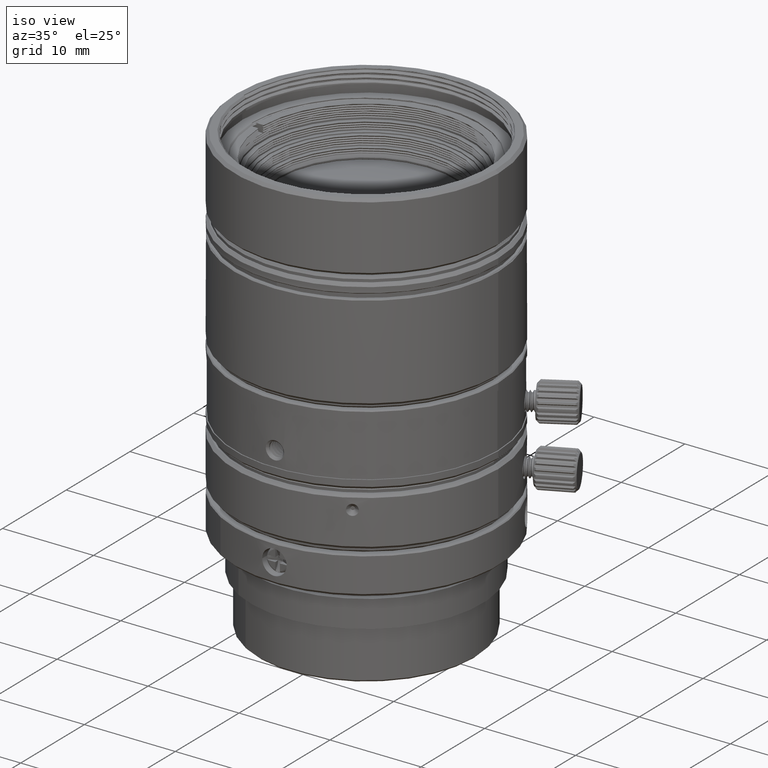
[diagram: clean part render]
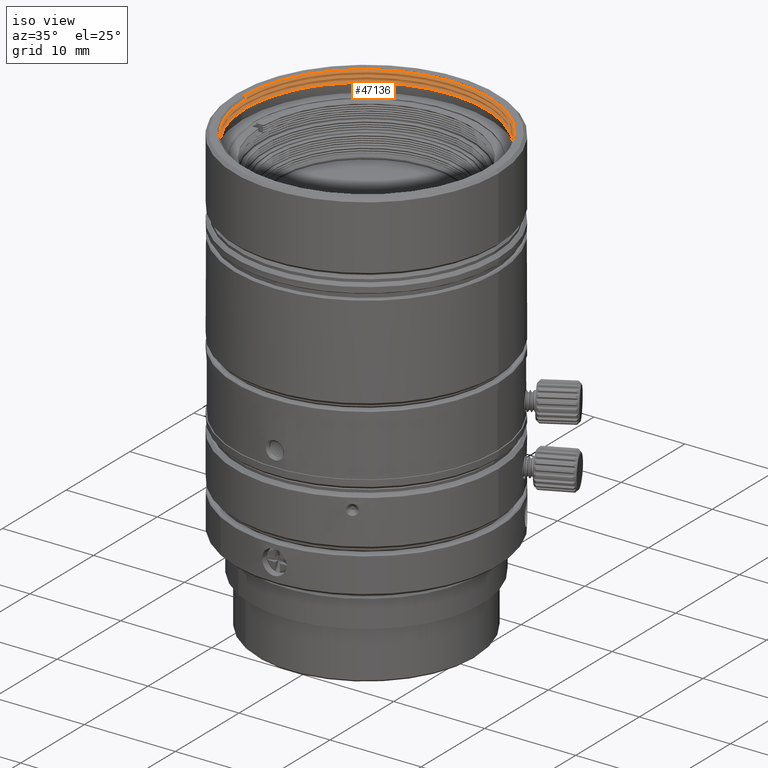
[diagram: same view with one face highlighted and labeled with its STEP entity id]
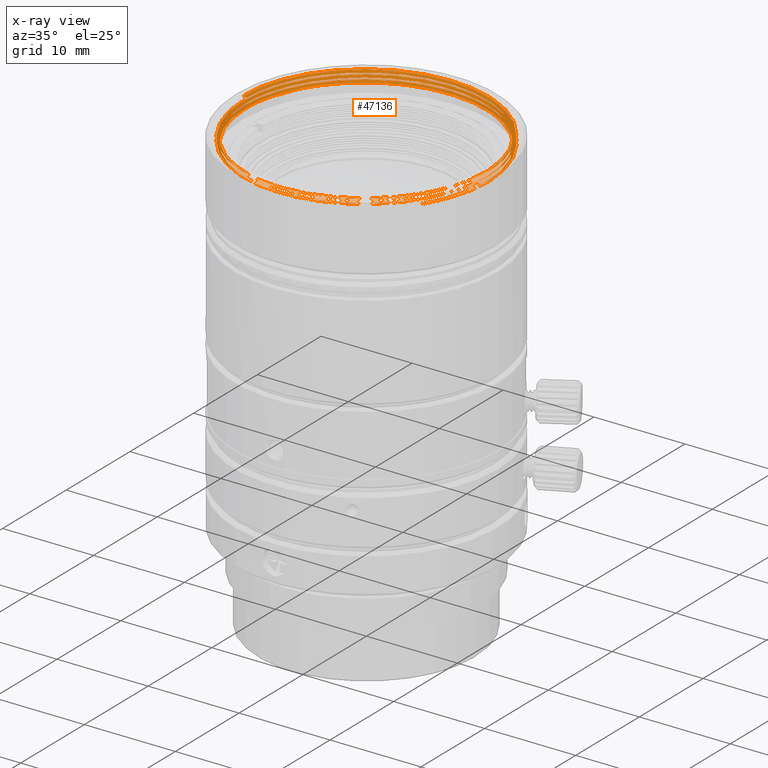
[diagram: x-ray of the same camera — body ghosted, the highlighted face saturated]
A machine part, iso view. The second image highlights one B-rep face of the part: STEP entity #47136.
The next image is the same camera in x-ray: the body ghosted, the highlighted face saturated — about 0% of this face is hidden behind the body in this view.
In plain terms, the highlighted face is a freeform B-spline surface patch.
Its self-contained STEP definition (entity closure, byte-faithful):
#167 = EDGE_CURVE ( 'NONE', #38062, #33712, #33276, .T. ) ;
#612 = CARTESIAN_POINT ( 'NONE',  ( 1.953992523340279929E-14, -13.30522692080259972, 42.00260450940569967 ) ) ;
#648 = CARTESIAN_POINT ( 'NONE',  ( -12.55444375105458299, 4.262492794065851243, 41.85727819297180474 ) ) ;
#746 = ORIENTED_EDGE ( 'NONE', *, *, #20448, .F. ) ;
#788 = VERTEX_POINT ( 'NONE', #12037 ) ;
#846 = CARTESIAN_POINT ( 'NONE',  ( 7.548545768439015369, 11.29719709678998463, 42.86738396117061711 ) ) ;
#914 = CARTESIAN_POINT ( 'NONE',  ( -2.665100436707940279, 13.39836467594370006, 42.97223714432959696 ) ) ;
#955 = CARTESIAN_POINT ( 'NONE',  ( -13.32595257650141285, -2.650696774580921122, 42.05488396117061711 ) ) ;
#1211 = CARTESIAN_POINT ( 'NONE',  ( 2.595720597328659895, -13.04956866947489935, 42.01822950940569257 ) ) ;
#1223 = CARTESIAN_POINT ( 'NONE',  ( 7.548545768439015369, -11.29719709678998463, 42.71113396117061711 ) ) ;
#1287 = EDGE_CURVE ( 'NONE', #22718, #45451, #56361, .T. ) ;
#1513 = CARTESIAN_POINT ( 'NONE',  ( 9.607477904595702611, 9.607477904595741691, 42.35175896117061001 ) ) ;
#1521 = CARTESIAN_POINT ( 'NONE',  ( 11.06289013418189882, -7.391986861308469159, 42.08072950940569257 ) ) ;
#1814 = CARTESIAN_POINT ( 'NONE',  ( 13.50000035464774051, 0.0001006786175923418241, 42.28924370480946493 ) ) ;
#1821 = CARTESIAN_POINT ( 'NONE',  ( -5.227783378235789868, -12.62098553288550029, 42.67536214432960406 ) ) ;
#1840 = CARTESIAN_POINT ( 'NONE',  ( -13.50000023668267524, -2.561856938022021668E-08, 42.53926286938398960 ) ) ;
#2025 = CARTESIAN_POINT ( 'NONE',  ( 8.130457716616016128, 10.57959832539991929, 42.70621047835582829 ) ) ;
#2045 = CARTESIAN_POINT ( 'NONE',  ( 13.32595257650141285, 2.650696774580981518, 42.80488396117061711 ) ) ;
#2117 = CARTESIAN_POINT ( 'NONE',  ( 5.227783378235820066, -12.62098553288550029, 42.23786214432960406 ) ) ;
#2436 = CARTESIAN_POINT ( 'NONE',  ( 13.66085630079839852, 2.597921877622869460E-14, 42.33161214432960406 ) ) ;
#2478 = CARTESIAN_POINT ( 'NONE',  ( 13.50000452970534148, -0.8835320631336180952, 42.28405082547631366 ) ) ;
#2748 = CARTESIAN_POINT ( 'NONE',  ( 2.665100436707960263, 13.39836467594370006, 42.94098714432960406 ) ) ;
#3052 = CARTESIAN_POINT ( 'NONE',  ( -13.39836467594370006, 2.665100436707950493, 42.06598714432960406 ) ) ;
#3277 = EDGE_CURVE ( 'NONE', #20761, #5990, #52492, .T. ) ;
#3334 = CARTESIAN_POINT ( 'NONE',  ( 12.17532900467680079, -5.176336752535680041, 41.60138904252160330 ) ) ;
#3355 = CARTESIAN_POINT ( 'NONE',  ( 5.227783378235809408, 12.62098553288550029, 41.92536214432960406 ) ) ;
#3403 = CARTESIAN_POINT ( 'NONE',  ( 5.199529574207982563, -12.55277481601286205, 42.19550896117062422 ) ) ;
#3485 = B_SPLINE_CURVE_WITH_KNOTS ( 'NONE', 3,
 ( #1814, #35031, #42675, #52694, #39744, #1513, #33243, #23540, #6511, #24158, #20919, #38591, #54133, #18848, #28856, #11196, #47343, #52989, #25614 ),
 .UNSPECIFIED., .F., .F.,
 ( 4, 1, 1, 1, 1, 1, 1, 1, 1, 1, 1, 1, 1, 1, 1, 1, 4 ),
 ( 0.4215121370630712239, 0.4335635197414881570, 0.4456153597473920258, 0.4576671997532959502, 0.4697190397592008182, 0.4817708797651047425, 0.4938227197710096661, 0.5058745597769135349, 0.5179263997828184030, 0.5299782397887222718, 0.5420300797946272509, 0.5540819198005311197, 0.5661337598064359877, 0.5781855998123399676, 0.5902374398182438364, 0.6022892798241485934, 0.6143411200512803871 ),
 .UNSPECIFIED. ) ;
#3495 = CARTESIAN_POINT ( 'NONE',  ( 12.29242682754770044, 5.091689906449150094, 42.65885450940569967 ) ) ;
#3679 = VERTEX_POINT ( 'NONE', #60995 ) ;
#3685 = B_SPLINE_CURVE_WITH_KNOTS ( 'NONE', 3,
 ( #58305, #5680, #56550, #44196, #42448, #5979, #27706, #42135, #47122, #28020, #19781, #8917, #4212, #24780, #20086, #13290, #48905, #33036, #46819, #61565, #39209, #53615, #61234, #13617, #32724, #23314, #18632, #37759, #52159, #45433 ),
 .UNSPECIFIED., .F., .F.,
 ( 4, 2, 2, 2, 2, 2, 2, 2, 2, 2, 2, 2, 2, 2, 4 ),
 ( 0.2199196317820964475, 0.2516031971690563251, 0.2832867625560162028, 0.2991285452494961694, 0.3149703279429760805, 0.3308121106364560471, 0.3466538933299359582, 0.3624956760234158692, 0.3783374587168958358, 0.3941792414103756914, 0.4100210241038556025, 0.4258628067973355691, 0.4417045894908154802, 0.4575463721842954468, 0.4733881548777753578 ),
 .UNSPECIFIED. ) ;
#3710 = CARTESIAN_POINT ( 'NONE',  ( 9.187601962288121982, 9.651706334954219813, 42.19794391325127236 ) ) ;
#3803 = CARTESIAN_POINT ( 'NONE',  ( -13.22000750369340061, 2.131628207280299927E-14, 42.87760450940569967 ) ) ;
#3871 = CARTESIAN_POINT ( 'NONE',  ( 13.23000766788004157, -2.873930721286521893E-07, 42.63333041596807504 ) ) ;
#3978 = CARTESIAN_POINT ( 'NONE',  ( 7.589563927830690560, 11.35858511050949993, 41.90973714432959696 ) ) ;
#4024 = CARTESIAN_POINT ( 'NONE',  ( 12.86895362206108118, -3.544853267954210629, 41.61202580047024213 ) ) ;
#4089 = CARTESIAN_POINT ( 'NONE',  ( -13.23000815934756069, -0.0001698527228863128070, 41.88337825461447039 ) ) ;
#4212 = CARTESIAN_POINT ( 'NONE',  ( -6.382258503269063965, -11.62108665452279865, 41.96849000029774146 ) ) ;
#4263 = CARTESIAN_POINT ( 'NONE',  ( 11.29719709678998463, 7.548545768439026027, 41.83613396117061001 ) ) ;
#4319 = ORIENTED_EDGE ( 'NONE', *, *, #58863, .F. ) ;
#4408 = CARTESIAN_POINT ( 'NONE',  ( -7.391986861308489587, 11.06289013418189882, 42.79947950940569967 ) ) ;
#4575 = CARTESIAN_POINT ( 'NONE',  ( 7.548545768439005599, 11.29719709678998463, 41.86738396117061001 ) ) ;
#5124 = ORIENTED_EDGE ( 'NONE', *, *, #17400, .T. ) ;
#5276 = CARTESIAN_POINT ( 'NONE',  ( -2.595720597328659895, 13.04956866947489935, 42.26822950940569257 ) ) ;
#5600 = CARTESIAN_POINT ( 'NONE',  ( 12.29242682754770044, 5.091689906449169634, 41.65885450940569967 ) ) ;
#5680 = CARTESIAN_POINT ( 'NONE',  ( -13.22999763591898059, -0.7686544596956934594, 41.88801049517930863 ) ) ;
#5758 = VERTEX_POINT ( 'NONE', #46520 ) ;
#5834 = CARTESIAN_POINT ( 'NONE',  ( 12.55277481601286205, 5.199529574207972793, 42.82050896117062422 ) ) ;
#5904 = CARTESIAN_POINT ( 'NONE',  ( 7.391986861308500245, 11.06289013418189882, 41.70572950940569257 ) ) ;
#5917 = CARTESIAN_POINT ( 'NONE',  ( 2.650696774580971748, -13.32595257650141285, 42.67988396117061711 ) ) ;
#5979 = CARTESIAN_POINT ( 'NONE',  ( -11.59172379823317556, -6.407476171800201570, 41.92362235839280515 ) ) ;
#5990 = VERTEX_POINT ( 'NONE', #47453 ) ;
#6205 = CARTESIAN_POINT ( 'NONE',  ( 13.04956866947489935, 2.595720597328669665, 41.64322950940569257 ) ) ;
#6441 = CARTESIAN_POINT ( 'NONE',  ( -13.50000000000000000, 2.131628207280299927E-14, 43.03925825251939585 ) ) ;
#6511 = CARTESIAN_POINT ( 'NONE',  ( 2.650696774580941550, 13.32595257650141285, 42.39863396117061711 ) ) ;
#6520 = CARTESIAN_POINT ( 'NONE',  ( -13.30522692080259972, 1.798561299892749493E-14, 42.37760450940569967 ) ) ;
#6564 = CARTESIAN_POINT ( 'NONE',  ( -13.50000122741986885, -0.8835655915269909899, 42.04446729450395281 ) ) ;
#6747 = CARTESIAN_POINT ( 'NONE',  ( -13.50000122741988307, 0.8835730141565937279, 43.03405062783732404 ) ) ;
#6818 = CARTESIAN_POINT ( 'NONE',  ( 5.227783378235799638, 12.62098553288550029, 42.92536214432960406 ) ) ;
#7122 = CARTESIAN_POINT ( 'NONE',  ( -13.66085630079839852, 1.798561299892749493E-14, 42.58161214432960406 ) ) ;
#7248 = CARTESIAN_POINT ( 'NONE',  ( 13.32595257650141285, -2.650696774580921122, 41.77363396117061711 ) ) ;
#7432 = CARTESIAN_POINT ( 'NONE',  ( 12.62098553288550029, -5.227783378235769440, 42.80036214432960406 ) ) ;
#7477 = CARTESIAN_POINT ( 'NONE',  ( 12.55277481601286205, -5.199529574207942595, 42.25800896117061711 ) ) ;
#7746 = CARTESIAN_POINT ( 'NONE',  ( 1.998401444325279879E-14, -13.66085630079839852, 42.20661214432960406 ) ) ;
#7786 = CARTESIAN_POINT ( 'NONE',  ( 2.650696774580951764, -13.32595257650141285, 42.17988396117061711 ) ) ;
#7933 = CARTESIAN_POINT ( 'NONE',  ( 3.462900748216384716, -12.88567309116447568, 42.52912307640934841 ) ) ;
#8047 = CARTESIAN_POINT ( 'NONE',  ( 1.643130076445230102E-14, 13.66085630079839852, 42.45661214432960406 ) ) ;
#8170 = CARTESIAN_POINT ( 'NONE',  ( -13.22000750369340061, 0.8652474677917909585, 42.87239617607239950 ) ) ;
#8390 = CARTESIAN_POINT ( 'NONE',  ( 13.23000799625356549, 2.431121606061017954E-07, 42.13341899258882250 ) ) ;
#8493 = CARTESIAN_POINT ( 'NONE',  ( 7.391986861308509127, 11.06289013418189882, 42.70572950940569257 ) ) ;
#8794 = CARTESIAN_POINT ( 'NONE',  ( -13.23000645162137445, 0.006267291367860129865, 41.88333790269562229 ) ) ;
#8809 = CARTESIAN_POINT ( 'NONE',  ( -2.595720597328649681, -13.04956866947489935, 42.48697950940569967 ) ) ;
#8917 = CARTESIAN_POINT ( 'NONE',  ( -7.103041577228209391, -11.19057807042832309, 41.96346076730925745 ) ) ;
#9098 = CARTESIAN_POINT ( 'NONE',  ( -13.22537282903770084, 0.3783065712318638973, 41.88109443824811251 ) ) ;
#9324 = CARTESIAN_POINT ( 'NONE',  ( -13.22999946922801051, 1.005835617486770861, 42.37730047359533359 ) ) ;
#9412 = CARTESIAN_POINT ( 'NONE',  ( -1.732073491931318987, 13.22997492993456525, 41.76862576166281116 ) ) ;
#9424 = CARTESIAN_POINT ( 'NONE',  ( 1.665334536937729762E-14, -13.30522692080259972, 42.50260450940569967 ) ) ;
#9720 = CARTESIAN_POINT ( 'NONE',  ( -6.663173818465197407, 11.56003589497225725, 41.79989886572318625 ) ) ;
#9895 = CARTESIAN_POINT ( 'NONE',  ( 13.32594566904678324, 2.650719545472493444, 41.80488410076203820 ) ) ;
#9988 = CARTESIAN_POINT ( 'NONE',  ( 13.30522692080259972, 2.597921877622869460E-14, 42.12760450940569967 ) ) ;
#10072 = ORIENTED_EDGE ( 'NONE', *, *, #35877, .T. ) ;
#10222 = CARTESIAN_POINT ( 'NONE',  ( 13.50000011833716052, -1.065700966538674297E-05, 42.78926492503141787 ) ) ;
#10250 = CARTESIAN_POINT ( 'NONE',  ( -7.702560106075909907, 10.79719481119335356, 42.30768942178124803 ) ) ;
#10291 = CARTESIAN_POINT ( 'NONE',  ( 12.29242682754770044, -5.091689906449119896, 42.09635450940569967 ) ) ;
#10536 = CARTESIAN_POINT ( 'NONE',  ( -5.199529574207942595, 12.55277481601286205, 42.94550896117061711 ) ) ;
#10608 = CARTESIAN_POINT ( 'NONE',  ( -7.391986861308500245, 11.06289013418189882, 41.79947950940569967 ) ) ;
#10915 = CARTESIAN_POINT ( 'NONE',  ( 1.643130076445230102E-14, 13.30522692080259972, 42.25260450940569967 ) ) ;
#10927 = CARTESIAN_POINT ( 'NONE',  ( 13.50000011833716052, -1.065700966538674297E-05, 42.78926492503141787 ) ) ;
#11134 = CARTESIAN_POINT ( 'NONE',  ( -7.548545768439003822, 11.29719709678998463, 42.96113396117061711 ) ) ;
#11196 = CARTESIAN_POINT ( 'NONE',  ( -12.55277481601286205, 5.199529574207980787, 42.50800896117062422 ) ) ;
#11201 = CARTESIAN_POINT ( 'NONE',  ( -13.04956866947489935, -2.595720597328629697, 41.89322950940569257 ) ) ;
#11518 = CARTESIAN_POINT ( 'NONE',  ( 11.35858511050949993, -7.589563927830670131, 42.78473714432959696 ) ) ;
#11648 = CARTESIAN_POINT ( 'NONE',  ( 12.55924842601104707, -5.178188880853178411, 41.75813978510451818 ) ) ;
#11730 = CARTESIAN_POINT ( 'NONE',  ( -3.462926474174706115, 12.88566582070700406, 42.77915205159355594 ) ) ;
#11833 = CARTESIAN_POINT ( 'NONE',  ( 12.62098553288550029, 5.227783378235830725, 42.36286214432960406 ) ) ;
#12037 = CARTESIAN_POINT ( 'NONE',  ( 13.23000832462709653, -2.128787121563362597E-07, 41.63334363433990148 ) ) ;
#12132 = CARTESIAN_POINT ( 'NONE',  ( -2.665100436707930065, 13.39836467594370006, 41.97223714432959696 ) ) ;
#12173 = CARTESIAN_POINT ( 'NONE',  ( -7.548545768438995829, -11.29719709678998463, 42.11738396117061001 ) ) ;
#12324 = B_SPLINE_CURVE_WITH_KNOTS ( 'NONE', 1,
 ( #16094, #49612 ),
 .UNSPECIFIED., .F., .F.,
 ( 2, 2 ),
 ( 0.09934462169384269958, 0.7923941269414610522 ),
 .UNSPECIFIED. ) ;
#12341 = CARTESIAN_POINT ( 'NONE',  ( -11.56020047455848498, 6.662882889297109479, 42.84168421654897685 ) ) ;
#12441 = CARTESIAN_POINT ( 'NONE',  ( 12.62098553288550029, -5.227783378235780098, 42.30036214432960406 ) ) ;
#12639 = CARTESIAN_POINT ( 'NONE',  ( 6.662864463116767944, -11.56021149246386770, 42.54995274136571481 ) ) ;
#12654 = CARTESIAN_POINT ( 'NONE',  ( -13.23000750369327427, 1.731803932518620748, 42.87295404318796699 ) ) ;
#12757 = CARTESIAN_POINT ( 'NONE',  ( -9.659684127109509078, 9.659684127109528617, 42.51911214432960406 ) ) ;
#12947 = CARTESIAN_POINT ( 'NONE',  ( -13.22998945748601685, -0.02361331537566979319, 42.38348895658687354 ) ) ;
#13183 = CARTESIAN_POINT ( 'NONE',  ( 13.04956866947489935, 2.595720597328690094, 42.64322950940569257 ) ) ;
#13290 = CARTESIAN_POINT ( 'NONE',  ( -2.162785990197843677, -13.08484339229723403, 41.99544439456664691 ) ) ;
#13422 = CARTESIAN_POINT ( 'NONE',  ( 12.17532900467680079, -5.176336752535680041, 41.60138904252160330 ) ) ;
#13491 = CARTESIAN_POINT ( 'NONE',  ( -13.06033821322978028, 2.155948827395728351, 41.87032701268969959 ) ) ;
#13505 = CARTESIAN_POINT ( 'NONE',  ( -11.06289013418189882, 7.391986861308519785, 42.83072950940569967 ) ) ;
#13617 = CARTESIAN_POINT ( 'NONE',  ( 9.559843358068039976, -9.219773713528923054, 42.07243090023279564 ) ) ;
#13620 = CARTESIAN_POINT ( 'NONE',  ( 13.50000011833716052, -1.065700966538674297E-05, 42.78926492503141787 ) ) ;
#13811 = CARTESIAN_POINT ( 'NONE',  ( -13.12392722195711059, 1.727160636151686024, 41.87293709852401236 ) ) ;
#14008 = CARTESIAN_POINT ( 'NONE',  ( 13.66085630079839852, 3.241851231905460253E-14, 41.83161214432960406 ) ) ;
#14129 = CARTESIAN_POINT ( 'NONE',  ( 11.06289013418189882, 7.391986861308519785, 42.67447950940569967 ) ) ;
#14428 = CARTESIAN_POINT ( 'NONE',  ( 1.731575843267517456, 13.23004007277229555, 41.74778656312526692 ) ) ;
#14608 = CARTESIAN_POINT ( 'NONE',  ( -12.55277481601286205, 5.199529574207982563, 42.00800896117061711 ) ) ;
#14703 = CARTESIAN_POINT ( 'NONE',  ( -2.595720597328639911, 13.04956866947489935, 41.76822950940569257 ) ) ;
#14714 = CARTESIAN_POINT ( 'NONE',  ( -13.50000122741987596, -0.8835655915269482463, 42.54446729450394571 ) ) ;
#15005 = CARTESIAN_POINT ( 'NONE',  ( -9.408216180925309757, 9.408216180925339955, 42.31510450940569967 ) ) ;
#15231 = CARTESIAN_POINT ( 'NONE',  ( -11.29719709678998463, 7.548545768439026027, 42.99238396117061711 ) ) ;
#15304 = CARTESIAN_POINT ( 'NONE',  ( 7.391986861308519785, -11.06289013418189882, 42.04947950940569967 ) ) ;
#15616 = CARTESIAN_POINT ( 'NONE',  ( -9.408216180925288441, -9.408216180925320415, 41.94010450940569967 ) ) ;
#15630 = CARTESIAN_POINT ( 'NONE',  ( -9.607477904595693730, -9.607477904595691953, 42.60175896117061711 ) ) ;
#15921 = CARTESIAN_POINT ( 'NONE',  ( -11.35858511050949993, 7.589563927830710099, 43.03473714432959696 ) ) ;
#16094 = CARTESIAN_POINT ( 'NONE',  ( 11.05740615442210029, -7.309699516810979958, 41.60138904252160330 ) ) ;
#16212 = CARTESIAN_POINT ( 'NONE',  ( -5.227783378235789868, -12.62098553288550029, 42.17536214432960406 ) ) ;
#16425 = CARTESIAN_POINT ( 'NONE',  ( 1.731803932493813258, 13.23000750369699929, 42.74788971327714648 ) ) ;
#16485 = CARTESIAN_POINT ( 'NONE',  ( 11.05740615442210029, -7.309699516810979958, 41.60138904252160330 ) ) ;
#16531 = CARTESIAN_POINT ( 'NONE',  ( -12.62098553288550029, -5.227783378235789868, 42.11286214432960406 ) ) ;
#16840 = CARTESIAN_POINT ( 'NONE',  ( -2.665100436707950493, 13.39836467594370006, 42.47223714432959696 ) ) ;
#16872 = CARTESIAN_POINT ( 'NONE',  ( 11.98133254938203862, 5.813554687996839831, 42.16943777802842419 ) ) ;
#17138 = CARTESIAN_POINT ( 'NONE',  ( 12.62098553288550029, 5.227783378235809408, 42.86286214432960406 ) ) ;
#17333 = CARTESIAN_POINT ( 'NONE',  ( 12.88566475192201288, -3.462931778916136683, 42.61244839254195682 ) ) ;
#17400 = EDGE_CURVE ( 'NONE', #33712, #30451, #3485, .T. ) ;
#17434 = CARTESIAN_POINT ( 'NONE',  ( 11.87797864245500001, -5.859173839856920196, 41.60138904252160330 ) ) ;
#17452 = CARTESIAN_POINT ( 'NONE',  ( 2.665100436707970033, -13.39836467594370006, 42.72223714432959696 ) ) ;
#17488 = CARTESIAN_POINT ( 'NONE',  ( -2.709867815701573868, 12.98080347497527498, 42.27477371307945475 ) ) ;
#17652 = CARTESIAN_POINT ( 'NONE',  ( 10.57959041303968917, -8.130468577927961960, 42.58119931889625320 ) ) ;
#17913 = ORIENTED_EDGE ( 'NONE', *, *, #36100, .F. ) ;
#18195 = CARTESIAN_POINT ( 'NONE',  ( 2.595720597328680324, -13.04956866947489935, 42.51822950940569257 ) ) ;
#18263 = CARTESIAN_POINT ( 'NONE',  ( -13.22884618030664328, -0.1893485560842916859, 42.38448529185772173 ) ) ;
#18360 = CARTESIAN_POINT ( 'NONE',  ( -13.32595257650141285, 2.650696774580951764, 42.02363396117061711 ) ) ;
#18632 = CARTESIAN_POINT ( 'NONE',  ( 12.26512983435302750, -5.124153821160993161, 42.10195062468488203 ) ) ;
#18832 = CARTESIAN_POINT ( 'NONE',  ( -2.595720597328649681, 13.04956866947489935, 42.76822950940569257 ) ) ;
#18848 = CARTESIAN_POINT ( 'NONE',  ( -9.607477904595700835, 9.607477904595722151, 42.47675896117061711 ) ) ;
#19062 = VERTEX_POINT ( 'NONE', #16485 ) ;
#19122 = CARTESIAN_POINT ( 'NONE',  ( -13.22885235940989013, 0.1889166426408875055, 41.88223655617360208 ) ) ;
#19396 = CARTESIAN_POINT ( 'NONE',  ( -9.408216180925299099, 9.408216180925350614, 41.81510450940569967 ) ) ;
#19708 = CARTESIAN_POINT ( 'NONE',  ( 11.06289013418189882, 7.391986861308519785, 41.67447950940569967 ) ) ;
#19781 = CARTESIAN_POINT ( 'NONE',  ( -8.408499773646118669, -10.24594401481762063, 41.95376394719764335 ) ) ;
#20011 = CARTESIAN_POINT ( 'NONE',  ( -11.06289013418189882, 7.391986861308519785, 42.33072950940569257 ) ) ;
#20086 = CARTESIAN_POINT ( 'NONE',  ( -3.964649043189831801, -12.65592066207253907, 41.98430099099377344 ) ) ;
#20238 = CARTESIAN_POINT ( 'NONE',  ( 13.50000157613123619, 0.8835620510300292718, 42.79446727363386316 ) ) ;
#20313 = CARTESIAN_POINT ( 'NONE',  ( -13.57335909251350081, 2.131628207280299927E-14, 43.08161214432960406 ) ) ;
#20325 = CARTESIAN_POINT ( 'NONE',  ( 9.607477904595720375, -9.607477904595683071, 42.72675896117061711 ) ) ;
#20448 = EDGE_CURVE ( 'NONE', #32649, #788, #33945, .T. ) ;
#20624 = CARTESIAN_POINT ( 'NONE',  ( 11.49327518631660006, -6.586681095183480217, 41.58619949060680199 ) ) ;
#20639 = CARTESIAN_POINT ( 'NONE',  ( -13.50000023668267524, -2.561856938022021668E-08, 42.53926286938398960 ) ) ;
#20761 = VERTEX_POINT ( 'NONE', #44705 ) ;
#20852 = CARTESIAN_POINT ( 'NONE',  ( -13.32595257650141285, 2.650696774580971748, 43.02363396117062422 ) ) ;
#20919 = CARTESIAN_POINT ( 'NONE',  ( -2.650696774580951764, 13.32595257650141285, 42.42988396117061711 ) ) ;
#20926 = CARTESIAN_POINT ( 'NONE',  ( 5.227783378235809408, -12.62098553288550029, 42.73786214432960406 ) ) ;
#20986 = CARTESIAN_POINT ( 'NONE',  ( 13.50000035464774051, 0.0001006786175923418241, 42.28924370480946493 ) ) ;
#21140 = CARTESIAN_POINT ( 'NONE',  ( 6.662882889284433396, 11.56020047456633293, 42.71662987106824261 ) ) ;
#21195 = ORIENTED_EDGE ( 'NONE', *, *, #1287, .T. ) ;
#21235 = CARTESIAN_POINT ( 'NONE',  ( 5.227783378235809408, 12.62098553288550029, 42.42536214432960406 ) ) ;
#21529 = CARTESIAN_POINT ( 'NONE',  ( 11.68825597740950073, -6.238364526232540008, 41.60138904252160330 ) ) ;
#21549 = CARTESIAN_POINT ( 'NONE',  ( -11.35858511050959940, 7.589563927830700329, 42.03473714432959696 ) ) ;
#21854 = CARTESIAN_POINT ( 'NONE',  ( -7.589563927830679901, 11.35858511050949993, 42.50348714432960406 ) ) ;
#21883 = CARTESIAN_POINT ( 'NONE',  ( 12.98849250777685072, 2.940885945533443735, 42.15113362017810061 ) ) ;
#21897 = CARTESIAN_POINT ( 'NONE',  ( -12.55277481601286205, -5.199529574207952365, 42.07050896117062422 ) ) ;
#21970 = VERTEX_POINT ( 'NONE', #28115 ) ;
#22037 = CARTESIAN_POINT ( 'NONE',  ( -11.56022753767959976, -6.662836624249729667, 42.42499139239534145 ) ) ;
#22147 = CARTESIAN_POINT ( 'NONE',  ( 7.589563927830700329, -11.35858511050949993, 42.75348714432960406 ) ) ;
#22457 = CARTESIAN_POINT ( 'NONE',  ( 13.39836467594370006, -2.665100436707919851, 41.81598714432960406 ) ) ;
#22502 = CARTESIAN_POINT ( 'NONE',  ( -11.29719709678998463, -7.548545768438986059, 42.08613396117061001 ) ) ;
#22590 = FACE_OUTER_BOUND ( 'NONE', #55610, .T. ) ;
#22661 = CARTESIAN_POINT ( 'NONE',  ( -13.21141788270686845, -0.7573409857358701647, 42.38790131503076708 ) ) ;
#22718 = VERTEX_POINT ( 'NONE', #30504 ) ;
#22899 = CARTESIAN_POINT ( 'NONE',  ( -12.29242682754770044, 5.091689906449150094, 42.84635450940569967 ) ) ;
#22963 = CARTESIAN_POINT ( 'NONE',  ( -13.18752478775308035, -1.081272538406889527, 42.38985334533575866 ) ) ;
#23109 = CARTESIAN_POINT ( 'NONE',  ( -6.924450967110463928, 11.31054457146894698, 42.30211597879364405 ) ) ;
#23314 = CARTESIAN_POINT ( 'NONE',  ( 11.71498120620147176, -6.268826664658083025, 42.09438987063922610 ) ) ;
#23426 = CARTESIAN_POINT ( 'NONE',  ( -11.50262078941611144, 6.607965841090786441, 42.34186500861988378 ) ) ;
#23540 = CARTESIAN_POINT ( 'NONE',  ( 5.199529574207972793, 12.55277481601286205, 42.38300896117062422 ) ) ;
#23692 = CARTESIAN_POINT ( 'NONE',  ( -13.50000122741987596, 0.8835655915269639005, 42.03405062783728852 ) ) ;
#23829 = CARTESIAN_POINT ( 'NONE',  ( -11.56041183104831482, 6.662521559037765329, 41.84162304281130673 ) ) ;
#24130 = CARTESIAN_POINT ( 'NONE',  ( -13.23000751742625880, 0.0009846864868111001364, 41.88336975553159647 ) ) ;
#24158 = CARTESIAN_POINT ( 'NONE',  ( 1.643130076445230102E-14, 13.58702555287910307, 42.41425896117061711 ) ) ;
#24202 = EDGE_CURVE ( 'NONE', #43865, #3679, #50784, .T. ) ;
#24296 = CARTESIAN_POINT ( 'NONE',  ( 6.753533675877737960E-15, 13.58702555287910307, 41.91425896117061711 ) ) ;
#24392 = CARTESIAN_POINT ( 'NONE',  ( -11.06289013418189882, 7.391986861308509127, 41.83072950940569257 ) ) ;
#24433 = CARTESIAN_POINT ( 'NONE',  ( 6.662738981340491584, 11.56028652303632143, 41.71654207157304484 ) ) ;
#24632 = CARTESIAN_POINT ( 'NONE',  ( 9.607477904595720375, 9.607477904595731033, 42.85175896117061711 ) ) ;
#24706 = CARTESIAN_POINT ( 'NONE',  ( -13.57335909251350081, 0.8883742751995350462, 43.07640381099630389 ) ) ;
#24780 = CARTESIAN_POINT ( 'NONE',  ( -4.813111018145908915, -12.35381888168514841, 41.97891011213998524 ) ) ;
#25001 = CARTESIAN_POINT ( 'NONE',  ( 13.30522692080259972, 3.241851231905460253E-14, 41.62760450940569967 ) ) ;
#25305 = CARTESIAN_POINT ( 'NONE',  ( 12.29876617310109843, -5.070791824920729773, 41.59648533333960074 ) ) ;
#25614 = CARTESIAN_POINT ( 'NONE',  ( -13.50000023668267524, -2.561856938022021668E-08, 42.53926286938398960 ) ) ;
#25620 = CARTESIAN_POINT ( 'NONE',  ( 11.06289013418189882, 7.391986861308519785, 42.17447950940569967 ) ) ;
#25746 = CARTESIAN_POINT ( 'NONE',  ( 13.50000059151938281, 7.102613561471712248E-05, 41.78926221376508465 ) ) ;
#25924 = CARTESIAN_POINT ( 'NONE',  ( -7.589563927830679901, -11.35858511050949993, 42.15973714432959696 ) ) ;
#26119 = CARTESIAN_POINT ( 'NONE',  ( 12.17532900467680079, -5.176336752535680041, 41.60138904252160330 ) ) ;
#26219 = CARTESIAN_POINT ( 'NONE',  ( -5.227783378235789868, 12.62098553288550029, 42.48786214432960406 ) ) ;
#26396 = ORIENTED_EDGE ( 'NONE', *, *, #3277, .T. ) ;
#26535 = CARTESIAN_POINT ( 'NONE',  ( -13.39836467594370006, -2.665100436707940279, 42.59723714432959696 ) ) ;
#26729 = CARTESIAN_POINT ( 'NONE',  ( -13.23000623897207895, -0.006701149547567220727, 42.38338728984467707 ) ) ;
#26744 = CARTESIAN_POINT ( 'NONE',  ( -8.130457716655081768, 10.57959832536932687, 42.81041688601750650 ) ) ;
#26845 = CARTESIAN_POINT ( 'NONE',  ( -2.665100436707919851, -13.39836467594370006, 42.19098714432960406 ) ) ;
#26853 = B_SPLINE_CURVE_WITH_KNOTS ( 'NONE', 3,
 ( #10222, #54070, #20238, #2045, #5834, #29636, #24632, #846, #48755, #44054, #30551, #44962, #10536, #11134, #49666, #15231, #30232, #20852, #6747, #6441 ),
 .UNSPECIFIED., .F., .F.,
 ( 4, 1, 1, 1, 1, 1, 1, 1, 1, 1, 1, 1, 1, 1, 1, 1, 1, 4 ),
 ( 0.8071705116321222784, 0.8071705599245228013, 0.8192223999292396197, 0.8312742399339575483, 0.8433260799386744777, 0.8553779199433924063, 0.8674297599481092247, 0.8794815999528261541, 0.8915334399575439717, 0.9035852799622612341, 0.9156371199669786076, 0.9276889599716959811, 0.9397407999764132436, 0.9517926399811307281, 0.9638444799858478795, 0.9758963199905653640, 0.9879481599952826265, 1.000000000000000000 ),
 .UNSPECIFIED. ) ;
#26876 = CARTESIAN_POINT ( 'NONE',  ( 0.8145751877671659757, 13.23326672493993250, 42.25352983957649400 ) ) ;
#27143 = CARTESIAN_POINT ( 'NONE',  ( 11.35858511050949993, 7.589563927830710099, 42.37848714432960406 ) ) ;
#27269 = CARTESIAN_POINT ( 'NONE',  ( -13.04956866947489935, 2.595720597328680324, 42.86197950940569967 ) ) ;
#27313 = CARTESIAN_POINT ( 'NONE',  ( -13.23000750369329914, 2.131628207280299927E-14, 42.88337801209749500 ) ) ;
#27510 = CARTESIAN_POINT ( 'NONE',  ( 9.607477904595718599, -9.607477904595700835, 42.22675896117061711 ) ) ;
#27595 = CARTESIAN_POINT ( 'NONE',  ( 2.595720597328669665, 13.04956866947489935, 42.73697950940569967 ) ) ;
#27668 = CARTESIAN_POINT ( 'NONE',  ( 8.130443100604626494, -10.57960999244233768, 42.56036798986309577 ) ) ;
#27706 = CARTESIAN_POINT ( 'NONE',  ( -11.26229699396346540, -6.975913564119244903, 41.92756665378532688 ) ) ;
#27765 = B_SPLINE_SURFACE_WITH_KNOTS ( 'NONE', 1, 3, ( 
 ( #3803, #8170, #27269, #22899, #13505, #51737, #4408, #42658, #18832, #37958, #27595, #32301, #8493, #57054, #14129, #3495, #13183, #51413, #28206, #41717, #33227, #46713, #52348, #42024, #18195, #9424, #8809, #61445, #47016, #37645, #56750, #32924, #35037, #6520, #44426, #39436, #20011, #15005, #43528, #39137, #5276, #10915, #34119, #57936, #58231, #34733, #25620, #29088, #53224, #9988, #58543, #10291, #1521, #29392, #15304, #30311, #1211, #612, #54140, #53536, #33804, #15616, #48205, #53841, #11201, #49430, #44731, #34416, #24392, #19396, #10608, #30008, #14703, #48519, #29706, #48828, #5904, #49128, #19708, #5600, #6205, #25001, #38834, #25305, #20624, #44124 ),
 ( #20313, #24706, #39752, #58848, #15921, #52926, #38526, #57628, #914, #43826, #2748, #6818, #54450, #55356, #40674, #17138, #60379, #40049, #45670, #7432, #11518, #35329, #22147, #20926, #17452, #36579, #59150, #1821, #41274, #54763, #30625, #55680, #26535, #7122, #59772, #50983, #49742, #12757, #21854, #26219, #16840, #8047, #45970, #21235, #35654, #31864, #27143, #11833, #45348, #2436, #36260, #12441, #31553, #50673, #59458, #2117, #40351, #7746, #26845, #16212, #25924, #45036, #60072, #16531, #40975, #30927, #3052, #50044, #21549, #35958, #55058, #31230, #12132, #50346, #52554, #3355, #3978, #60692, #51602, #61643, #55984, #14008, #22457, #41591, #56935, #37512 ) ),
 .UNSPECIFIED., .F., .F., .F.,
 ( 2, 2 ),
 ( 4, 1, 1, 1, 1, 1, 1, 1, 1, 1, 1, 1, 1, 1, 1, 1, 1, 1, 1, 1, 1, 1, 1, 1, 1, 1, 1, 1, 1, 1, 1, 1, 1, 1, 1, 1, 1, 1, 1, 1, 1, 1, 1, 1, 1, 1, 1, 1, 1, 1, 1, 1, 1, 1, 1, 1, 1, 1, 1, 1, 1, 1, 1, 1, 1, 1, 1, 1, 1, 1, 1, 1, 1, 1, 1, 1, 1, 1, 1, 1, 1, 1, 1, 4 ),
 ( 0.000000000000000000, 1.000000000000000000 ),
 ( 0.000000000000000000, 0.01205184000567549943, 0.02410368001135089824, 0.03615552001702639767, 0.04820736002270179649, 0.06025920002837729939, 0.07231104003405269820, 0.08436288003972820804, 0.09641472004540359297, 0.1084665600510790057, 0.1205184000567550012, 0.1325702400624300115, 0.1446220800681049801, 0.1566739200737810034, 0.1687257600794559997, 0.1807776000851320231, 0.1928294400908069917, 0.2048812800964829872, 0.2169331201021580113, 0.2289849601078339791, 0.2410368001135090033, 0.2530886401191849711, 0.2651404801248600229, 0.2771923201305360185, 0.2892441601362109593, 0.3012960001418860112, 0.3133478401475620068, 0.3253996801532370031, 0.3374515201589129987, 0.3495033601645879950, 0.3615552001702640461, 0.3736070401759389870, 0.3856588801816149825, 0.3977107201872900344, 0.4097625601929659744, 0.4218144001986409708, 0.4338662402043160227, 0.4459180802099920182, 0.4579699202156669591, 0.4700217602213430101, 0.4820736002270180065, 0.4941254402326940021, 0.5061772802383689429, 0.5182291202440449940, 0.5302809602497200459, 0.5423328002553959859, 0.5543846402610710378, 0.5664364802667459786, 0.5784883202724219187, 0.5905401602780969705, 0.6025920002837730216, 0.6146438402894480735, 0.6266956802951240135, 0.6387475203007990654, 0.6507993603064750054, 0.6628512003121499463, 0.6749030403178259974, 0.6869548803235010492, 0.6990067203291759901, 0.7110585603348520412, 0.7231104003405270930, 0.7351622403462029220, 0.7472140803518779739, 0.7592659203575540250, 0.7713177603632289658, 0.7833696003689050169, 0.7954214403745800688, 0.8074732803802560088, 0.8195251203859309497, 0.8315769603916070007, 0.8436288003972819416, 0.8556806404029569935, 0.8677324804086330445, 0.8797843204143079854, 0.8918361604199840365, 0.9038880004256589773, 0.9159398404313349173, 0.9279916804370099692, 0.9400435204426860203, 0.9520953604483609611, 0.9641472004540370122, 0.9761990404597120641, 0.9882508804653870049, 1.000000000000000000 ),
 .UNSPECIFIED. ) ;
#28020 = CARTESIAN_POINT ( 'NONE',  ( -8.993282551718767337, -9.731891618611925310, 41.94909636007447773 ) ) ;
#28115 = CARTESIAN_POINT ( 'NONE',  ( -13.23000815934756069, -0.0001698527228863128070, 41.88337825461447039 ) ) ;
#28206 = CARTESIAN_POINT ( 'NONE',  ( 13.04956866947489935, -2.595720597328649681, 42.61197950940569967 ) ) ;
#28378 = CARTESIAN_POINT ( 'NONE',  ( -5.199529574207963023, 12.55277481601286205, 41.94550896117062422 ) ) ;
#28520 = CARTESIAN_POINT ( 'NONE',  ( -3.463210251569859288, 12.88559234112070762, 41.77904822218238223 ) ) ;
#28627 = CARTESIAN_POINT ( 'NONE',  ( -13.50000047336536468, 1.997442246365429144E-07, 42.03922490918672850 ) ) ;
#28749 = CARTESIAN_POINT ( 'NONE',  ( -5.295373302427084816, 12.15876068055643522, 42.29107408266324342 ) ) ;
#28828 = CARTESIAN_POINT ( 'NONE',  ( -8.130741516624089726, 10.57938361238269920, 41.81032704874441208 ) ) ;
#28856 = CARTESIAN_POINT ( 'NONE',  ( -11.29719709679006456, 7.548545768439026027, 42.49238396117061711 ) ) ;
#29088 = CARTESIAN_POINT ( 'NONE',  ( 12.29242682754770044, 5.091689906449169634, 42.15885450940569967 ) ) ;
#29222 = ORIENTED_EDGE ( 'NONE', *, *, #60764, .T. ) ;
#29347 = CARTESIAN_POINT ( 'NONE',  ( -9.810703840473676607, 8.927035198061577859, 42.32461973043345438 ) ) ;
#29392 = CARTESIAN_POINT ( 'NONE',  ( 9.408216180925320415, -9.408216180925309757, 42.06510450940569967 ) ) ;
#29636 = CARTESIAN_POINT ( 'NONE',  ( 11.29719709678998463, 7.548545768439026027, 42.83613396117062422 ) ) ;
#29706 = CARTESIAN_POINT ( 'NONE',  ( 2.595720597328639911, 13.04956866947489935, 41.73697950940569967 ) ) ;
#29722 = CARTESIAN_POINT ( 'NONE',  ( -5.199529574207952365, -12.55277481601286205, 42.63300896117062422 ) ) ;
#30008 = CARTESIAN_POINT ( 'NONE',  ( -5.091689906449139436, 12.29242682754770044, 41.78385450940569967 ) ) ;
#30021 = CARTESIAN_POINT ( 'NONE',  ( -13.32595257650141285, -2.650696774580941550, 42.55488396117061711 ) ) ;
#30158 = ORIENTED_EDGE ( 'NONE', *, *, #40104, .T. ) ;
#30232 = CARTESIAN_POINT ( 'NONE',  ( -12.55277481601286205, 5.199529574207972793, 43.00800896117062422 ) ) ;
#30311 = CARTESIAN_POINT ( 'NONE',  ( 5.091689906449159864, -12.29242682754770044, 42.03385450940569967 ) ) ;
#30443 = CARTESIAN_POINT ( 'NONE',  ( 13.50000355980684574, -0.8835419105979340770, 41.78405076742870250 ) ) ;
#30451 = VERTEX_POINT ( 'NONE', #1840 ) ;
#30504 = CARTESIAN_POINT ( 'NONE',  ( 11.26169337361210054, -7.444747299857870537, 41.74277643297229901 ) ) ;
#30551 = CARTESIAN_POINT ( 'NONE',  ( 1.363691642855370614E-14, 13.58702555287910307, 42.91425896117061711 ) ) ;
#30625 = CARTESIAN_POINT ( 'NONE',  ( -11.35858511050949993, -7.589563927830670131, 42.62848714432960406 ) ) ;
#30724 = ORIENTED_EDGE ( 'NONE', *, *, #24202, .F. ) ;
#30835 = CARTESIAN_POINT ( 'NONE',  ( -6.662882889329692304, 11.56020047453997535, 42.79999499719757949 ) ) ;
#30927 = CARTESIAN_POINT ( 'NONE',  ( -13.66085630079839852, 1.487698852997709764E-14, 42.08161214432960406 ) ) ;
#31212 = CARTESIAN_POINT ( 'NONE',  ( 12.13439462468440055, -5.275467556873070230, 41.60138904252160330 ) ) ;
#31230 = CARTESIAN_POINT ( 'NONE',  ( -5.227783378235799638, 12.62098553288550029, 41.98786214432960406 ) ) ;
#31450 = CARTESIAN_POINT ( 'NONE',  ( -13.23000750369329914, 2.131628207280299927E-14, 42.88337801209749500 ) ) ;
#31517 = EDGE_CURVE ( 'NONE', #5758, #43865, #37152, .T. ) ;
#31553 = CARTESIAN_POINT ( 'NONE',  ( 11.35858511050959940, -7.589563927830660361, 42.28473714432959696 ) ) ;
#31596 = CARTESIAN_POINT ( 'NONE',  ( 7.548545768439026027, -11.29719709678998463, 42.21113396117061711 ) ) ;
#31746 = CARTESIAN_POINT ( 'NONE',  ( 11.56019544721538317, -6.662892301886106594, 42.59161539943202257 ) ) ;
#31845 = CARTESIAN_POINT ( 'NONE',  ( 11.05740615442210029, -7.309699516810979958, 41.60138904252160330 ) ) ;
#31864 = CARTESIAN_POINT ( 'NONE',  ( 9.659684127109509078, 9.659684127109549934, 42.39411214432960406 ) ) ;
#32301 = CARTESIAN_POINT ( 'NONE',  ( 5.091689906449139436, 12.29242682754770044, 42.72135450940569967 ) ) ;
#32371 = CARTESIAN_POINT ( 'NONE',  ( -12.80688275558379985, -3.430253802076224545, 42.40416848775089420 ) ) ;
#32608 = CARTESIAN_POINT ( 'NONE',  ( -13.23000151737988084, 0.01303222967729299013, 41.88329711176555747 ) ) ;
#32649 = VERTEX_POINT ( 'NONE', #26119 ) ;
#32724 = CARTESIAN_POINT ( 'NONE',  ( 10.36212212476523220, -8.316573662550736046, 42.07963000841316870 ) ) ;
#32777 = CARTESIAN_POINT ( 'NONE',  ( 13.49999656258461300, 0.8836129533729308871, 41.79446757368678078 ) ) ;
#32830 = CARTESIAN_POINT ( 'NONE',  ( -13.23000783164364869, 0.0001057792722175712161, 42.38336206266406236 ) ) ;
#32912 = CARTESIAN_POINT ( 'NONE',  ( 3.462725555689223356, 12.88572260116389856, 41.73736982510730797 ) ) ;
#32924 = CARTESIAN_POINT ( 'NONE',  ( -12.29242682754770044, -5.091689906449119896, 42.40885450940569967 ) ) ;
#33007 = B_SPLINE_CURVE_WITH_KNOTS ( 'NONE', 3,
 ( #47001, #48248, #57043, #52337, #52963, #37633, #24433, #32912, #14428, #9412, #28520, #9720, #28828, #43568, #23829, #648, #56737, #13491, #13811, #33536, #42961, #9098, #19122, #47310, #52664, #47945, #32608, #8794, #24130, #4089 ),
 .UNSPECIFIED., .F., .F.,
 ( 4, 2, 2, 2, 2, 2, 2, 2, 2, 2, 1, 1, 1, 1, 1, 1, 2, 4 ),
 ( 0.02494819604114564132, 0.04931962550876449469, 0.07369105497638334112, 0.09806248444400220143, 0.1224339139116210340, 0.1468053433792398943, 0.1711767728468587546, 0.1955482023144775872, 0.2077339170482870312, 0.2138267744151917393, 0.2168732030986440795, 0.2183964174403702774, 0.2191580246112333485, 0.2195388281966648980, 0.2197292299893806866, 0.2198244308857385532, 0.2198720313339175003, 0.2199196317820964475 ),
 .UNSPECIFIED. ) ;
#33036 = CARTESIAN_POINT ( 'NONE',  ( 0.7630267862168214066, -13.24476126395970432, 42.01306361458927086 ) ) ;
#33086 = CARTESIAN_POINT ( 'NONE',  ( -7.548545768439005599, 11.29719709678998463, 41.96113396117061711 ) ) ;
#33138 = CARTESIAN_POINT ( 'NONE',  ( -12.67180153854962832, 3.928763758974236797, 42.35942525634051492 ) ) ;
#33227 = CARTESIAN_POINT ( 'NONE',  ( 11.06289013418189882, -7.391986861308479817, 42.58072950940569257 ) ) ;
#33243 = CARTESIAN_POINT ( 'NONE',  ( 7.548545768439015369, 11.29719709678998463, 42.36738396117061001 ) ) ;
#33276 = B_SPLINE_CURVE_WITH_KNOTS ( 'NONE', 3,
 ( #43867, #6564, #955, #21897, #22502, #54807, #12173, #45714, #50087, #56025, #7786, #3403, #31596, #27510, #50394, #7477, #40717, #2478, #35701, #36622 ),
 .UNSPECIFIED., .F., .F.,
 ( 4, 1, 1, 1, 1, 1, 1, 1, 1, 1, 1, 1, 1, 1, 1, 1, 1, 4 ),
 ( 0.2286822378203201001, 0.2407340796470179012, 0.2527859196529228525, 0.2648377596588267768, 0.2768895996647314783, 0.2889414396706354582, 0.3009932796765403817, 0.3130451196824441951, 0.3250969596883481194, 0.3371487996942530985, 0.3492006397001569118, 0.3612524797060617798, 0.3733043197119656487, 0.3853561597178705167, 0.3974079997237744966, 0.4094598397296793646, 0.4215116797355833445, 0.4215121370630712239 ),
 .UNSPECIFIED. ) ;
#33531 = EDGE_CURVE ( 'NONE', #3679, #5990, #34702, .T. ) ;
#33536 = CARTESIAN_POINT ( 'NONE',  ( -13.18755935875341478, 1.080851269955992455, 41.87685249551773836 ) ) ;
#33712 = VERTEX_POINT ( 'NONE', #20986 ) ;
#33804 = CARTESIAN_POINT ( 'NONE',  ( -7.391986861308489587, -11.06289013418189882, 41.95572950940569257 ) ) ;
#33815 = CARTESIAN_POINT ( 'NONE',  ( 1.647739852851569446E-14, -13.58702555287910307, 42.66425896117061711 ) ) ;
#33945 = B_SPLINE_CURVE_WITH_KNOTS ( 'NONE', 3,
 ( #13422, #4024, #47245, #56348 ),
 .UNSPECIFIED., .F., .F.,
 ( 4, 4 ),
 ( 0.000000000000000000, 0.02494819604114564132 ),
 .UNSPECIFIED. ) ;
#34119 = CARTESIAN_POINT ( 'NONE',  ( 2.595720597328649681, 13.04956866947489935, 42.23697950940569967 ) ) ;
#34416 = CARTESIAN_POINT ( 'NONE',  ( -12.29242682754770044, 5.091689906449159864, 41.84635450940569967 ) ) ;
#34702 = B_SPLINE_CURVE_WITH_KNOTS ( 'NONE', 3,
 ( #44637, #44941, #59057, #35235, #54349, #2025, #21140, #59360, #16425, #54663, #11730, #30835, #26744, #60907, #12341, #36167, #12654, #31450 ),
 .UNSPECIFIED., .F., .F.,
 ( 4, 2, 2, 2, 2, 2, 2, 2, 4 ),
 ( 0.8049793243405146681, 0.8293569087979503207, 0.8537344932553860843, 0.8781120777128217370, 0.9024896621702573896, 0.9268672466276930422, 0.9512448310851286948, 0.9756224155425643474, 1.000000000000000000 ),
 .UNSPECIFIED. ) ;
#34733 = CARTESIAN_POINT ( 'NONE',  ( 9.408216180925320415, 9.408216180925350614, 42.19010450940569967 ) ) ;
#34745 = CARTESIAN_POINT ( 'NONE',  ( 13.32595154377916025, -2.650700179019720881, 42.77363394030052746 ) ) ;
#35031 = CARTESIAN_POINT ( 'NONE',  ( 13.49999462272606010, 0.8836326482892468137, 42.29446768978201021 ) ) ;
#35037 = CARTESIAN_POINT ( 'NONE',  ( -13.04956866947489935, -2.595720597328649681, 42.39322950940569257 ) ) ;
#35182 = CARTESIAN_POINT ( 'NONE',  ( -13.23000783164364869, 0.0001057792722175712161, 42.38336206266406236 ) ) ;
#35235 = CARTESIAN_POINT ( 'NONE',  ( 11.56020047453984745, 6.662882889330809633, 42.67495396429030308 ) ) ;
#35329 = CARTESIAN_POINT ( 'NONE',  ( 9.659684127109528617, -9.659684127109489538, 42.76911214432960406 ) ) ;
#35634 = CARTESIAN_POINT ( 'NONE',  ( 11.34718153608470104, -6.845628826414799306, 41.60138904252160330 ) ) ;
#35654 = CARTESIAN_POINT ( 'NONE',  ( 7.589563927830700329, 11.35858511050949993, 42.40973714432959696 ) ) ;
#35701 = CARTESIAN_POINT ( 'NONE',  ( 13.50000122729457708, 6.705678668204395967E-05, 42.28925935644868161 ) ) ;
#35877 = EDGE_CURVE ( 'NONE', #43554, #20761, #26853, .T. ) ;
#35958 = CARTESIAN_POINT ( 'NONE',  ( -9.659684127109500196, 9.659684127109549934, 42.01911214432960406 ) ) ;
#36100 = EDGE_CURVE ( 'NONE', #21970, #5758, #3685, .T. ) ;
#36167 = CARTESIAN_POINT ( 'NONE',  ( -12.88566582071562472, 3.462926474141695188, 42.86253049029635775 ) ) ;
#36260 = CARTESIAN_POINT ( 'NONE',  ( 13.39836467594370006, -2.665100436707910081, 42.31598714432960406 ) ) ;
#36579 = CARTESIAN_POINT ( 'NONE',  ( 1.643130076445230102E-14, -13.66085630079839852, 42.70661214432960406 ) ) ;
#36622 = CARTESIAN_POINT ( 'NONE',  ( 13.50000035464774051, 0.0001006786175923418241, 42.28924370480946493 ) ) ;
#37085 = CARTESIAN_POINT ( 'NONE',  ( -13.23000783164364869, 0.0001057792722175712161, 42.38336206266406236 ) ) ;
#37152 = B_SPLINE_CURVE_WITH_KNOTS ( 'NONE', 3,
 ( #8390, #59800, #21883, #16872, #41006, #3710, #51012, #55711, #50704, #26876, #46000, #60411, #17488, #48477, #28749, #23109, #10250, #52884, #29347, #57583, #23426, #57269, #33138, #43486, #9324, #32830 ),
 .UNSPECIFIED., .F., .F.,
 ( 4, 2, 2, 2, 2, 2, 2, 2, 2, 2, 2, 2, 4 ),
 ( 0.4733881548777753578, 0.4904594292304211844, 0.5075307035830669555, 0.5246019779357128376, 0.5416732522883587198, 0.5502088894646816053, 0.5587445266410044908, 0.5672801638173273764, 0.5758158009936503730, 0.5843514381699732585, 0.5928870753462961440, 0.6014227125226190296, 0.6099583496989420262 ),
 .UNSPECIFIED. ) ;
#37174 = CARTESIAN_POINT ( 'NONE',  ( -2.650696774580931336, 13.32595257650141285, 41.92988396117061001 ) ) ;
#37489 = CARTESIAN_POINT ( 'NONE',  ( 12.55277481601286205, 5.199529574207993221, 41.82050896117062422 ) ) ;
#37512 = CARTESIAN_POINT ( 'NONE',  ( 11.32288846310209962, -7.485201427148600928, 41.78512961613129306 ) ) ;
#37633 = CARTESIAN_POINT ( 'NONE',  ( 8.130343565853792143, 10.57968944390004573, 41.70613105605672644 ) ) ;
#37645 = CARTESIAN_POINT ( 'NONE',  ( -9.408216180925309757, -9.408216180925299099, 42.44010450940569967 ) ) ;
#37759 = CARTESIAN_POINT ( 'NONE',  ( 13.02290828154266755, -2.663498099676971265, 42.11743377864154780 ) ) ;
#37809 = CARTESIAN_POINT ( 'NONE',  ( 5.199529574207972793, 12.55277481601286205, 41.88300896117062422 ) ) ;
#37958 = CARTESIAN_POINT ( 'NONE',  ( 1.398881011027700081E-14, 13.30522692080259972, 42.75260450940569967 ) ) ;
#38062 = VERTEX_POINT ( 'NONE', #28627 ) ;
#38526 = CARTESIAN_POINT ( 'NONE',  ( -7.589563927830690560, 11.35858511050949993, 43.00348714432960406 ) ) ;
#38591 = CARTESIAN_POINT ( 'NONE',  ( -5.199529574207952365, 12.55277481601286205, 42.44550896117062422 ) ) ;
#38834 = CARTESIAN_POINT ( 'NONE',  ( 13.04956866947489935, -2.595720597328629697, 41.61197950940569967 ) ) ;
#39114 = ORIENTED_EDGE ( 'NONE', *, *, #56305, .F. ) ;
#39137 = CARTESIAN_POINT ( 'NONE',  ( -5.091689906449129666, 12.29242682754770044, 42.28385450940569967 ) ) ;
#39209 = CARTESIAN_POINT ( 'NONE',  ( 4.853890586846318023, -12.35709060605547016, 42.03824358865755784 ) ) ;
#39436 = CARTESIAN_POINT ( 'NONE',  ( -12.29242682754770044, 5.091689906449150094, 42.34635450940569967 ) ) ;
#39744 = CARTESIAN_POINT ( 'NONE',  ( 11.29719709678998463, 7.548545768439026027, 42.33613396117061711 ) ) ;
#39752 = CARTESIAN_POINT ( 'NONE',  ( -13.39836467594370006, 2.665100436707970033, 43.06598714432960406 ) ) ;
#39766 = CARTESIAN_POINT ( 'NONE',  ( -2.650696774580941550, -13.32595257650141285, 42.64863396117061711 ) ) ;
#40049 = CARTESIAN_POINT ( 'NONE',  ( 13.66085630079839852, 2.264854970235319658E-14, 42.83161214432960406 ) ) ;
#40065 = CARTESIAN_POINT ( 'NONE',  ( 11.29719709678998463, -7.548545768438986059, 42.74238396117061711 ) ) ;
#40104 = EDGE_CURVE ( 'NONE', #30451, #43554, #58598, .T. ) ;
#40173 = CARTESIAN_POINT ( 'NONE',  ( 11.26169337361210054, -7.444747299857870537, 41.74277643297229901 ) ) ;
#40351 = CARTESIAN_POINT ( 'NONE',  ( 2.665100436707950493, -13.39836467594370006, 42.22223714432959696 ) ) ;
#40674 = CARTESIAN_POINT ( 'NONE',  ( 11.35858511050949993, 7.589563927830710099, 42.87848714432960406 ) ) ;
#40717 = CARTESIAN_POINT ( 'NONE',  ( 13.32595257650141285, -2.650696774580911796, 42.27363396117061711 ) ) ;
#40975 = CARTESIAN_POINT ( 'NONE',  ( -13.39836467594370006, -2.665100436707919851, 42.09723714432959696 ) ) ;
#41006 = CARTESIAN_POINT ( 'NONE',  ( 11.21496926060727084, 7.196660995021924911, 42.17879983664307275 ) ) ;
#41159 = CARTESIAN_POINT ( 'NONE',  ( -6.662920140664413182, -11.56017940187313364, 42.46664073784737070 ) ) ;
#41274 = CARTESIAN_POINT ( 'NONE',  ( -7.589563927830670131, -11.35858511050949993, 42.65973714432959696 ) ) ;
#41591 = CARTESIAN_POINT ( 'NONE',  ( 12.62749431993299964, -5.206326721357919851, 41.80049296826349803 ) ) ;
#41717 = CARTESIAN_POINT ( 'NONE',  ( 12.29242682754770044, -5.091689906449110126, 42.59635450940569967 ) ) ;
#41787 = CARTESIAN_POINT ( 'NONE',  ( -13.12387277977525102, -1.727573134947322897, 42.39375742544668668 ) ) ;
#42024 = CARTESIAN_POINT ( 'NONE',  ( 5.091689906449150094, -12.29242682754770044, 42.53385450940569967 ) ) ;
#42135 = CARTESIAN_POINT ( 'NONE',  ( -10.48129440450122551, -8.102170773346646371, 41.93581689043567451 ) ) ;
#42448 = CARTESIAN_POINT ( 'NONE',  ( -12.42043871919150533, -4.725320349597256886, 41.91233194101319270 ) ) ;
#42658 = CARTESIAN_POINT ( 'NONE',  ( -5.091689906449119896, 12.29242682754770044, 42.78385450940569967 ) ) ;
#42675 = CARTESIAN_POINT ( 'NONE',  ( 13.32594279665479853, 2.650729014507277714, 42.30488415880964936 ) ) ;
#42823 = CARTESIAN_POINT ( 'NONE',  ( -13.50000047336536468, 1.997442246365429144E-07, 42.03922490918672850 ) ) ;
#42961 = CARTESIAN_POINT ( 'NONE',  ( -13.21144232762036630, 0.7569155682070404234, 41.87881026107513094 ) ) ;
#43129 = CARTESIAN_POINT ( 'NONE',  ( 9.607477904595702611, 9.607477904595750573, 41.85175896117061711 ) ) ;
#43486 = CARTESIAN_POINT ( 'NONE',  ( -13.11485776192126451, 2.002559559861209593, 42.37130707122881290 ) ) ;
#43528 = CARTESIAN_POINT ( 'NONE',  ( -7.391986861308489587, 11.06289013418189882, 42.29947950940569967 ) ) ;
#43554 = VERTEX_POINT ( 'NONE', #13620 ) ;
#43568 = CARTESIAN_POINT ( 'NONE',  ( -10.57984235420553176, 8.130144585938474222, 41.83118913728845456 ) ) ;
#43826 = CARTESIAN_POINT ( 'NONE',  ( 1.354472090042689875E-14, 13.66085630079839852, 42.95661214432960406 ) ) ;
#43865 = VERTEX_POINT ( 'NONE', #35182 ) ;
#43867 = CARTESIAN_POINT ( 'NONE',  ( -13.50000047336536468, 1.997442246365429144E-07, 42.03922490918672850 ) ) ;
#44054 = CARTESIAN_POINT ( 'NONE',  ( 2.650696774580961090, 13.32595257650141285, 42.89863396117062422 ) ) ;
#44124 = CARTESIAN_POINT ( 'NONE',  ( 11.02812276794879942, -7.290341201400889481, 41.58112198120739578 ) ) ;
#44196 = CARTESIAN_POINT ( 'NONE',  ( -12.76004775092332011, -3.637717964848202090, 41.90552828782409733 ) ) ;
#44426 = CARTESIAN_POINT ( 'NONE',  ( -13.04956866947489935, 2.595720597328680324, 42.36197950940569967 ) ) ;
#44637 = CARTESIAN_POINT ( 'NONE',  ( 13.23000766788004157, -2.873930721286521893E-07, 42.63333041596807504 ) ) ;
#44705 = CARTESIAN_POINT ( 'NONE',  ( -13.50000000000000000, 2.131628207280299927E-14, 43.03925825251939585 ) ) ;
#44731 = CARTESIAN_POINT ( 'NONE',  ( -13.04956866947489935, 2.595720597328659895, 41.86197950940569967 ) ) ;
#44859 = CARTESIAN_POINT ( 'NONE',  ( 11.73669750784944910, -6.726183993825882723, 41.74785394237171943 ) ) ;
#44941 = CARTESIAN_POINT ( 'NONE',  ( 13.23000750369125811, 1.731803932540957991, 42.64369994633229055 ) ) ;
#44962 = CARTESIAN_POINT ( 'NONE',  ( -2.650696774580941550, 13.32595257650141285, 42.92988396117061711 ) ) ;
#45036 = CARTESIAN_POINT ( 'NONE',  ( -9.659684127109489538, -9.659684127109519736, 42.14411214432960406 ) ) ;
#45348 = CARTESIAN_POINT ( 'NONE',  ( 13.39836467594379776, 2.665100436707960263, 42.34723714432959696 ) ) ;
#45433 = CARTESIAN_POINT ( 'NONE',  ( 13.23000799625356549, 2.431121606061017954E-07, 42.13341899258882250 ) ) ;
#45451 = VERTEX_POINT ( 'NONE', #52018 ) ;
#45670 = CARTESIAN_POINT ( 'NONE',  ( 13.39836467594370006, -2.665100436707940279, 42.81598714432960406 ) ) ;
#45714 = CARTESIAN_POINT ( 'NONE',  ( -5.199529574207952365, -12.55277481601286205, 42.13300896117062422 ) ) ;
#45856 = CARTESIAN_POINT ( 'NONE',  ( -13.06027103217401830, -2.156354850777986165, 42.39636017152185588 ) ) ;
#45970 = CARTESIAN_POINT ( 'NONE',  ( 2.665100436707940279, 13.39836467594370006, 42.44098714432960406 ) ) ;
#46000 = CARTESIAN_POINT ( 'NONE',  ( -0.06397524437260837527, 13.25931232579156749, 42.25878831302987493 ) ) ;
#46156 = CARTESIAN_POINT ( 'NONE',  ( -3.462962809638990613, -12.88565641259383554, 42.48746707465016925 ) ) ;
#46372 = ORIENTED_EDGE ( 'NONE', *, *, #31517, .F. ) ;
#46467 = CARTESIAN_POINT ( 'NONE',  ( -13.23000754808577106, -0.005504366048121767975, 42.38338009543653584 ) ) ;
#46520 = CARTESIAN_POINT ( 'NONE',  ( 13.23000799625356549, 2.431121606061017954E-07, 42.13341899258882250 ) ) ;
#46713 = CARTESIAN_POINT ( 'NONE',  ( 9.408216180925329297, -9.408216180925299099, 42.56510450940569967 ) ) ;
#46780 = CARTESIAN_POINT ( 'NONE',  ( 13.23000750369537037, -1.731806587501636630, 42.62286530511615013 ) ) ;
#46819 = CARTESIAN_POINT ( 'NONE',  ( 1.781914729331466996, -13.15116274168041244, 42.01917778517368163 ) ) ;
#47001 = CARTESIAN_POINT ( 'NONE',  ( 13.23000832462709653, -2.128787121563362597E-07, 41.63334363433990148 ) ) ;
#47016 = CARTESIAN_POINT ( 'NONE',  ( -7.391986861308479817, -11.06289013418189882, 42.45572950940569257 ) ) ;
#47054 = CARTESIAN_POINT ( 'NONE',  ( -13.50000000000000000, 2.131628207280299927E-14, 43.03925825251939585 ) ) ;
#47122 = CARTESIAN_POINT ( 'NONE',  ( -10.02962813259257402, -8.659988744413350759, 41.94012283169348621 ) ) ;
#47136 = ADVANCED_FACE ( 'NONE', ( #22590 ), #27765, .F. ) ;
#47245 = CARTESIAN_POINT ( 'NONE',  ( 13.23000750363821254, -1.772809485460546508, 41.62266555669901180 ) ) ;
#47310 = CARTESIAN_POINT ( 'NONE',  ( -13.22972048991831606, 0.09421101419757760276, 41.88280762247109834 ) ) ;
#47343 = CARTESIAN_POINT ( 'NONE',  ( -13.32595257650141285, 2.650696774580971748, 42.52363396117061001 ) ) ;
#47453 = CARTESIAN_POINT ( 'NONE',  ( -13.23000750369329914, 2.131628207280299927E-14, 42.88337801209749500 ) ) ;
#47502 = CARTESIAN_POINT ( 'NONE',  ( -9.607477904595691953, 9.607477904595741691, 41.97675896117061711 ) ) ;
#47945 = CARTESIAN_POINT ( 'NONE',  ( -13.22999022448920847, 0.02317963430299876948, 41.88323592540316298 ) ) ;
#48205 = CARTESIAN_POINT ( 'NONE',  ( -11.06289013418189882, -7.391986861308479817, 41.92447950940569967 ) ) ;
#48248 = CARTESIAN_POINT ( 'NONE',  ( 13.23000750374713874, 1.731824667518687688, 41.64370502047024303 ) ) ;
#48477 = CARTESIAN_POINT ( 'NONE',  ( -4.444473617413739142, 12.49365025517436756, 42.28560562952038282 ) ) ;
#48519 = CARTESIAN_POINT ( 'NONE',  ( 7.105427357600998703E-15, 13.30522692080259972, 41.75260450940569967 ) ) ;
#48537 = B_SPLINE_CURVE_WITH_KNOTS ( 'NONE', 3,
 ( #51579, #32777, #9895, #37489, #4263, #43129, #4575, #37809, #61290, #24296, #37174, #28378, #33086, #47502, #56914, #14608, #18360, #23692, #42823 ),
 .UNSPECIFIED., .F., .F.,
 ( 4, 1, 1, 1, 1, 1, 1, 1, 1, 1, 1, 1, 1, 1, 1, 1, 4 ),
 ( 0.03585312255465940290, 0.04790463955254877643, 0.05995647955845260363, 0.07200831956435754799, 0.08406015957026148622, 0.09611199957616631262, 0.1081638395820701398, 0.1202156795879750634, 0.1322675195938788906, 0.1443193595997838419, 0.1563711996056877940, 0.1684230396115916073, 0.1804748796174965308, 0.1925267196234003997, 0.2045785596293051567, 0.2166303996352091366, 0.2286822378203201001 ),
 .UNSPECIFIED. ) ;
#48755 = CARTESIAN_POINT ( 'NONE',  ( 5.199529574207963023, 12.55277481601286205, 42.88300896117061711 ) ) ;
#48828 = CARTESIAN_POINT ( 'NONE',  ( 5.091689906449150094, 12.29242682754770044, 41.72135450940569967 ) ) ;
#48842 = CARTESIAN_POINT ( 'NONE',  ( -11.29719709678998463, -7.548545768438986059, 42.58613396117061711 ) ) ;
#48905 = CARTESIAN_POINT ( 'NONE',  ( -1.209317524407045985, -13.21148976992881785, 42.00119691928573928 ) ) ;
#49128 = CARTESIAN_POINT ( 'NONE',  ( 9.408216180925320415, 9.408216180925359495, 41.69010450940569967 ) ) ;
#49430 = CARTESIAN_POINT ( 'NONE',  ( -13.30522692080259972, 1.487698852997709764E-14, 41.87760450940569967 ) ) ;
#49445 = CARTESIAN_POINT ( 'NONE',  ( -12.55277481601286205, -5.199529574207942595, 42.57050896117062422 ) ) ;
#49612 = CARTESIAN_POINT ( 'NONE',  ( 11.26169337361210054, -7.444747299857870537, 41.74277643297229901 ) ) ;
#49666 = CARTESIAN_POINT ( 'NONE',  ( -9.607477904595700835, 9.607477904595722151, 42.97675896117061711 ) ) ;
#49742 = CARTESIAN_POINT ( 'NONE',  ( -11.35858511050959940, 7.589563927830710099, 42.53473714432959696 ) ) ;
#49872 = EDGE_CURVE ( 'NONE', #19062, #22718, #12324, .T. ) ;
#50027 = CARTESIAN_POINT ( 'NONE',  ( 11.20582437155460021, -7.080023394564329386, 41.60138904252160330 ) ) ;
#50044 = CARTESIAN_POINT ( 'NONE',  ( -12.62098553288550029, 5.227783378235820066, 42.05036214432960406 ) ) ;
#50087 = CARTESIAN_POINT ( 'NONE',  ( -2.650696774580921122, -13.32595257650141285, 42.14863396117061711 ) ) ;
#50346 = CARTESIAN_POINT ( 'NONE',  ( 6.661338147750940031E-15, 13.66085630079839852, 41.95661214432960406 ) ) ;
#50394 = CARTESIAN_POINT ( 'NONE',  ( 11.29719709679006456, -7.548545768438976289, 42.24238396117061711 ) ) ;
#50423 = B_SPLINE_CURVE_WITH_KNOTS ( 'NONE', 3,
 ( #31845, #50027, #35634, #21529, #17434, #54743, #31212, #3334 ),
 .UNSPECIFIED., .F., .F.,
 ( 4, 2, 2, 4 ),
 ( 0.000000000000000000, 0.3401094424565749841, 0.8666046026954250525, 1.000000000000000000 ),
 .UNSPECIFIED. ) ;
#50487 = CARTESIAN_POINT ( 'NONE',  ( 13.50000122735735886, 4.736185809435956157E-05, 41.78925924035345218 ) ) ;
#50673 = CARTESIAN_POINT ( 'NONE',  ( 9.659684127109528617, -9.659684127109509078, 42.26911214432960406 ) ) ;
#50704 = CARTESIAN_POINT ( 'NONE',  ( 3.391408057453642488, 12.90467277943177571, 42.23791190398350182 ) ) ;
#50784 = B_SPLINE_CURVE_WITH_KNOTS ( 'NONE', 3,
 ( #37085, #46467, #26729, #55564, #12947, #50866, #51809, #18263, #51169, #22661, #22963, #41787, #45856, #32371, #56505, #22037, #56178, #60264, #41159, #46156, #51485, #60893, #7933, #12639, #27668, #17652, #31746, #17333, #46780, #3871 ),
 .UNSPECIFIED., .F., .F.,
 ( 4, 2, 1, 1, 1, 1, 1, 1, 2, 2, 2, 2, 2, 2, 2, 2, 2, 4 ),
 ( 0.6099583496989420262, 0.6100059622415791027, 0.6100535747842161793, 0.6101487998694904435, 0.6103392500400388609, 0.6107201503811356957, 0.6114819510633293653, 0.6130055524277165935, 0.6160527551564911608, 0.6221471606140402955, 0.6343359715291385648, 0.6587135933593352144, 0.6830912151895317530, 0.7074688370197284026, 0.7318464588499249412, 0.7562240806801214799, 0.7806017025103180185, 0.8049793243405146681 ),
 .UNSPECIFIED. ) ;
#50866 = CARTESIAN_POINT ( 'NONE',  ( -13.22993509128253820, -0.04729030311208026749, 42.38363129006368268 ) ) ;
#50983 = CARTESIAN_POINT ( 'NONE',  ( -12.62098553288550029, 5.227783378235820066, 42.55036214432960406 ) ) ;
#51012 = CARTESIAN_POINT ( 'NONE',  ( 7.926211133176506607, 10.72241276617956451, 42.20772593124485184 ) ) ;
#51169 = CARTESIAN_POINT ( 'NONE',  ( -13.22536051095576326, -0.3787363938027448196, 42.38562396340485350 ) ) ;
#51413 = CARTESIAN_POINT ( 'NONE',  ( 13.30522692080259972, 2.264854970235319658E-14, 42.62760450940569967 ) ) ;
#51485 = CARTESIAN_POINT ( 'NONE',  ( -1.731838447458111885, -13.23000333319181365, 42.49788065907076628 ) ) ;
#51579 = CARTESIAN_POINT ( 'NONE',  ( 13.50000059151938281, 7.102613561471712248E-05, 41.78926221376508465 ) ) ;
#51602 = CARTESIAN_POINT ( 'NONE',  ( 11.35858511050949993, 7.589563927830710099, 41.87848714432960406 ) ) ;
#51737 = CARTESIAN_POINT ( 'NONE',  ( -9.408216180925309757, 9.408216180925339955, 42.81510450940569967 ) ) ;
#51809 = CARTESIAN_POINT ( 'NONE',  ( -13.22971739885297637, -0.09464394482351609628, 42.38391595715063431 ) ) ;
#52018 = CARTESIAN_POINT ( 'NONE',  ( 13.50000059151938281, 7.102613561471712248E-05, 41.78926221376508465 ) ) ;
#52159 = CARTESIAN_POINT ( 'NONE',  ( 13.23000750369885736, -1.347554555990087888, 42.12535617855255055 ) ) ;
#52337 = CARTESIAN_POINT ( 'NONE',  ( 11.56016121121706419, 6.662956400794131540, 41.67490945451103102 ) ) ;
#52348 = CARTESIAN_POINT ( 'NONE',  ( 7.391986861308509127, -11.06289013418189882, 42.54947950940569967 ) ) ;
#52492 = B_SPLINE_CURVE_WITH_KNOTS ( 'NONE', 1,
 ( #47054, #27313 ),
 .UNSPECIFIED., .F., .F.,
 ( 2, 2 ),
 ( 0.2076093467089309974, 0.9716995753909691835 ),
 .UNSPECIFIED. ) ;
#52554 = CARTESIAN_POINT ( 'NONE',  ( 2.665100436707930065, 13.39836467594370006, 41.94098714432960406 ) ) ;
#52664 = CARTESIAN_POINT ( 'NONE',  ( -13.22993663373511453, 0.04685687100054469756, 41.88309315745354411 ) ) ;
#52694 = CARTESIAN_POINT ( 'NONE',  ( 12.55277481601286205, 5.199529574207993221, 42.32050896117062422 ) ) ;
#52884 = CARTESIAN_POINT ( 'NONE',  ( -9.145725733090758425, 9.605443706235242018, 42.31894129760112833 ) ) ;
#52926 = CARTESIAN_POINT ( 'NONE',  ( -9.659684127109509078, 9.659684127109528617, 43.01911214432960406 ) ) ;
#52963 = CARTESIAN_POINT ( 'NONE',  ( 10.57953653020692464, 8.130542542426518082, 41.68531474752572308 ) ) ;
#52989 = CARTESIAN_POINT ( 'NONE',  ( -13.50000122741986885, 0.8835655915270269611, 42.53405062783728141 ) ) ;
#53224 = CARTESIAN_POINT ( 'NONE',  ( 13.04956866947489935, 2.595720597328669665, 42.14322950940569257 ) ) ;
#53308 = ORIENTED_EDGE ( 'NONE', *, *, #49872, .T. ) ;
#53536 = CARTESIAN_POINT ( 'NONE',  ( -5.091689906449129666, -12.29242682754770044, 41.97135450940569967 ) ) ;
#53552 = CARTESIAN_POINT ( 'NONE',  ( -7.548545768438986059, -11.29719709678998463, 42.61738396117061001 ) ) ;
#53615 = CARTESIAN_POINT ( 'NONE',  ( 6.839472167294085025, -11.37890867122807137, 42.05155686742235588 ) ) ;
#53841 = CARTESIAN_POINT ( 'NONE',  ( -12.29242682754770044, -5.091689906449129666, 41.90885450940569967 ) ) ;
#53856 = CARTESIAN_POINT ( 'NONE',  ( 13.50000052999577527, -0.8835726725206746179, 42.78405058609710920 ) ) ;
#54070 = CARTESIAN_POINT ( 'NONE',  ( 13.50000122741847619, -7.080993923429691056E-06, 42.78925891943044491 ) ) ;
#54133 = CARTESIAN_POINT ( 'NONE',  ( -7.548545768438995829, 11.29719709678998463, 42.46113396117061001 ) ) ;
#54140 = CARTESIAN_POINT ( 'NONE',  ( -2.595720597328629697, -13.04956866947489935, 41.98697950940569967 ) ) ;
#54349 = CARTESIAN_POINT ( 'NONE',  ( 10.57959832536687195, 8.130457716659027056, 42.68537252496686563 ) ) ;
#54450 = CARTESIAN_POINT ( 'NONE',  ( 7.589563927830700329, 11.35858511050949993, 42.90973714432959696 ) ) ;
#54663 = CARTESIAN_POINT ( 'NONE',  ( -1.731803932549934366, 13.23000750368964340, 42.76873099480945939 ) ) ;
#54743 = CARTESIAN_POINT ( 'NONE',  ( 12.09224875801930033, -5.374106680165779970, 41.60138904252160330 ) ) ;
#54763 = CARTESIAN_POINT ( 'NONE',  ( -9.659684127109500196, -9.659684127109500196, 42.64411214432960406 ) ) ;
#54807 = CARTESIAN_POINT ( 'NONE',  ( -9.607477904595681295, -9.607477904595709717, 42.10175896117061001 ) ) ;
#55058 = CARTESIAN_POINT ( 'NONE',  ( -7.589563927830690560, 11.35858511050949993, 42.00348714432960406 ) ) ;
#55356 = CARTESIAN_POINT ( 'NONE',  ( 9.659684127109528617, 9.659684127109539276, 42.89411214432960406 ) ) ;
#55564 = CARTESIAN_POINT ( 'NONE',  ( -13.23000108295648580, -0.01346601706518940449, 42.38342795653965567 ) ) ;
#55610 = EDGE_LOOP ( 'NONE', ( #39114, #53308, #21195, #29222, #60231, #5124, #30158, #10072, #26396, #61539, #30724, #46372, #17913, #4319, #746 ) ) ;
#55680 = CARTESIAN_POINT ( 'NONE',  ( -12.62098553288550029, -5.227783378235780098, 42.61286214432960406 ) ) ;
#55711 = CARTESIAN_POINT ( 'NONE',  ( 5.028018427674841639, 12.34965542624505375, 42.22770992661095590 ) ) ;
#55984 = CARTESIAN_POINT ( 'NONE',  ( 13.39836467594370006, 2.665100436707960263, 41.84723714432959696 ) ) ;
#56025 = CARTESIAN_POINT ( 'NONE',  ( 1.989181891512601191E-14, -13.58702555287910307, 42.16425896117061711 ) ) ;
#56178 = CARTESIAN_POINT ( 'NONE',  ( -10.57962957182409802, -8.130417623182186304, 42.43540331273914035 ) ) ;
#56305 = EDGE_CURVE ( 'NONE', #19062, #32649, #50423, .T. ) ;
#56348 = CARTESIAN_POINT ( 'NONE',  ( 13.23000832462709653, -2.128787121563362597E-07, 41.63334363433990148 ) ) ;
#56361 = B_SPLINE_CURVE_WITH_KNOTS ( 'NONE', 3,
 ( #40173, #44859, #11648, #7248, #30443, #50487, #25746 ),
 .UNSPECIFIED., .F., .F.,
 ( 4, 1, 1, 1, 4 ),
 ( 0.000000000000000000, 0.01174911953483611347, 0.02380095954073992159, 0.03585279954664383900, 0.03585312255465940290 ),
 .UNSPECIFIED. ) ;
#56505 = CARTESIAN_POINT ( 'NONE',  ( -12.55431795718318355, -4.262861444132996169, 42.40937413590843619 ) ) ;
#56550 = CARTESIAN_POINT ( 'NONE',  ( -13.16420618897800487, -1.659965665818382341, 41.89336756490715885 ) ) ;
#56737 = CARTESIAN_POINT ( 'NONE',  ( -12.80698646275453001, 3.429868869312108881, 41.86249729167134603 ) ) ;
#56750 = CARTESIAN_POINT ( 'NONE',  ( -11.06289013418189882, -7.391986861308479817, 42.42447950940569967 ) ) ;
#56914 = CARTESIAN_POINT ( 'NONE',  ( -11.29719709679006456, 7.548545768439015369, 41.99238396117061711 ) ) ;
#56935 = CARTESIAN_POINT ( 'NONE',  ( 11.80047372963800001, -6.762733508874210209, 41.79020712553069927 ) ) ;
#57043 = CARTESIAN_POINT ( 'NONE',  ( 12.88565747351925772, 3.462967903886549070, 41.65410459098330875 ) ) ;
#57054 = CARTESIAN_POINT ( 'NONE',  ( 9.408216180925329297, 9.408216180925339955, 42.69010450940569967 ) ) ;
#57269 = CARTESIAN_POINT ( 'NONE',  ( -12.34396747535834571, 4.858185314438471458, 42.35353684381870920 ) ) ;
#57583 = CARTESIAN_POINT ( 'NONE',  ( -10.98919351324422422, 7.428290059050343785, 42.33608158594280724 ) ) ;
#57628 = CARTESIAN_POINT ( 'NONE',  ( -5.227783378235780098, 12.62098553288550029, 42.98786214432960406 ) ) ;
#57936 = CARTESIAN_POINT ( 'NONE',  ( 5.091689906449150094, 12.29242682754770044, 42.22135450940569967 ) ) ;
#58231 = CARTESIAN_POINT ( 'NONE',  ( 7.391986861308509127, 11.06289013418189882, 42.20572950940569257 ) ) ;
#58305 = CARTESIAN_POINT ( 'NONE',  ( -13.23000815934756069, -0.0001698527228863128070, 41.88337825461447039 ) ) ;
#58543 = CARTESIAN_POINT ( 'NONE',  ( 13.04956866947489935, -2.595720597328619927, 42.11197950940569967 ) ) ;
#58558 = CARTESIAN_POINT ( 'NONE',  ( 12.55277481601286205, -5.199529574207932825, 42.75800896117062422 ) ) ;
#58598 = B_SPLINE_CURVE_WITH_KNOTS ( 'NONE', 3,
 ( #20639, #14714, #30021, #49445, #48842, #15630, #53552, #29722, #39766, #33815, #5917, #58861, #1223, #20325, #40065, #58558, #34745, #53856, #10927 ),
 .UNSPECIFIED., .F., .F.,
 ( 4, 1, 1, 1, 1, 1, 1, 1, 1, 1, 1, 1, 1, 1, 1, 1, 4 ),
 ( 0.6143411200512803871, 0.6263929598359574413, 0.6384447998418613102, 0.6504966398477662892, 0.6625484798536701581, 0.6746003198595750261, 0.6866521598654788949, 0.6987039998713837630, 0.7107558398772877428, 0.7228076798831915006, 0.7348595198890963687, 0.7469113598950003485, 0.7589631999009052166, 0.7710150399068091964, 0.7830668799127140645, 0.7951187199186179333, 0.8071705116321222784 ),
 .UNSPECIFIED. ) ;
#58848 = CARTESIAN_POINT ( 'NONE',  ( -12.62098553288550029, 5.227783378235809408, 43.05036214432960406 ) ) ;
#58861 = CARTESIAN_POINT ( 'NONE',  ( 5.199529574207972793, -12.55277481601286205, 42.69550896117062422 ) ) ;
#58863 = EDGE_CURVE ( 'NONE', #788, #21970, #33007, .T. ) ;
#59057 = CARTESIAN_POINT ( 'NONE',  ( 12.88566582070889055, 3.462926474169362390, 42.65411767497300843 ) ) ;
#59150 = CARTESIAN_POINT ( 'NONE',  ( -2.665100436707940279, -13.39836467594370006, 42.69098714432960406 ) ) ;
#59360 = CARTESIAN_POINT ( 'NONE',  ( 3.462926474120961107, 12.88566582072168387, 42.73746948852889460 ) ) ;
#59458 = CARTESIAN_POINT ( 'NONE',  ( 7.589563927830710099, -11.35858511050949993, 42.25348714432960406 ) ) ;
#59772 = CARTESIAN_POINT ( 'NONE',  ( -13.39836467594370006, 2.665100436707970033, 42.56598714432960406 ) ) ;
#59800 = CARTESIAN_POINT ( 'NONE',  ( 13.23000750368733947, 1.452139192751626284, 42.14219152094241849 ) ) ;
#60072 = CARTESIAN_POINT ( 'NONE',  ( -11.35858511050949993, -7.589563927830670131, 42.12848714432960406 ) ) ;
#60231 = ORIENTED_EDGE ( 'NONE', *, *, #167, .T. ) ;
#60264 = CARTESIAN_POINT ( 'NONE',  ( -8.130494055251300978, -10.57957083353996985, 42.45622798546514787 ) ) ;
#60379 = CARTESIAN_POINT ( 'NONE',  ( 13.39836467594370006, 2.665100436707980247, 42.84723714432959696 ) ) ;
#60411 = CARTESIAN_POINT ( 'NONE',  ( -1.826218596783808934, 13.13310252078851370, 42.26941024978134465 ) ) ;
#60692 = CARTESIAN_POINT ( 'NONE',  ( 9.659684127109509078, 9.659684127109558816, 41.89411214432960406 ) ) ;
#60764 = EDGE_CURVE ( 'NONE', #45451, #38062, #48537, .T. ) ;
#60893 = CARTESIAN_POINT ( 'NONE',  ( 1.731774727573292649, -13.23001167411802292, 42.51870865995035587 ) ) ;
#60907 = CARTESIAN_POINT ( 'NONE',  ( -10.57959832539266642, 8.130457716624702513, 42.83126149569318386 ) ) ;
#60995 = CARTESIAN_POINT ( 'NONE',  ( 13.23000766788004157, -2.873930721286521893E-07, 42.63333041596807504 ) ) ;
#61234 = CARTESIAN_POINT ( 'NONE',  ( 7.798365467781302129, -10.75082919548034255, 42.05839432973738923 ) ) ;
#61290 = CARTESIAN_POINT ( 'NONE',  ( 2.650696774580931336, 13.32595257650141285, 41.89863396117061711 ) ) ;
#61445 = CARTESIAN_POINT ( 'NONE',  ( -5.091689906449129666, -12.29242682754770044, 42.47135450940569967 ) ) ;
#61539 = ORIENTED_EDGE ( 'NONE', *, *, #33531, .F. ) ;
#61565 = CARTESIAN_POINT ( 'NONE',  ( 3.827382090385077262, -12.70745638965450297, 42.03176777220782867 ) ) ;
#61643 = CARTESIAN_POINT ( 'NONE',  ( 12.62098553288550029, 5.227783378235830725, 41.86286214432960406 ) ) ;